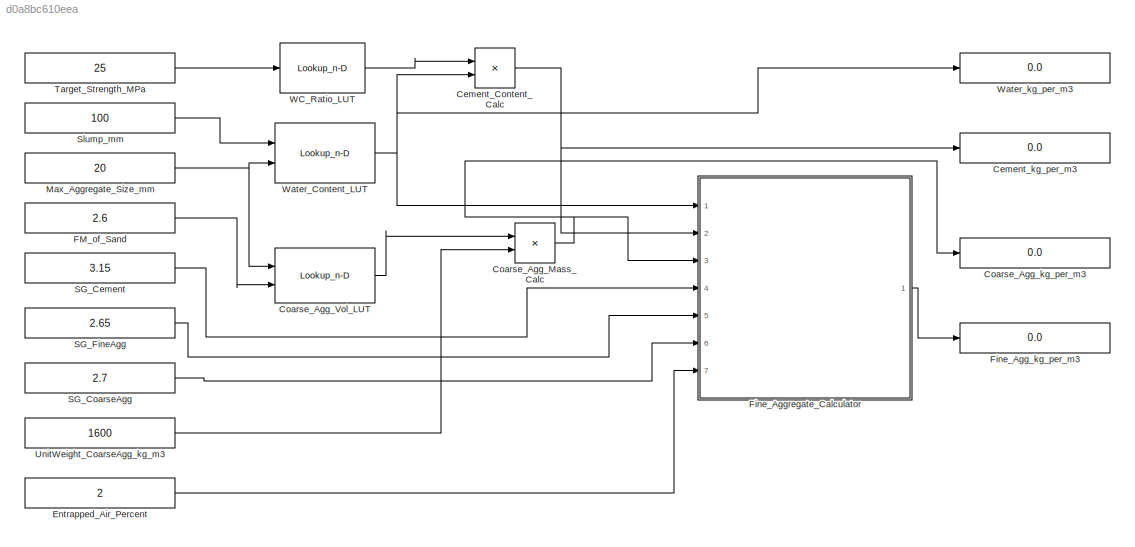
MODEL slx_d0a8bc610eea
KIND model
CONFIG AbsTol = auto
CONFIG EnableMultiTasking = off
CONFIG FixedStep = auto
CONFIG MaxStep = auto
CONFIG MinStep = auto
CONFIG RelTol = 1e-3
CONFIG SampleTimeConstraint = Unconstrained
CONFIG Solver = FixedStepDiscrete
CONFIG SolverName = FixedStepDiscrete
CONFIG StartTime = 0.0
CONFIG StopTime = 0
BLOCK [Product] Cement_Content_Calc
  Inputs = /*
  Ports = [2, 1]
BLOCK [Display] Cement_kg_per_m3
  Decimation = 1
  Ports = [1]
BLOCK [Product] Coarse_Agg_Mass_Calc
  Ports = [2, 1]
BLOCK [Lookup_n-D] Coarse_Agg_Vol_LUT
  BreakpointsForDimension1 = [10 20 40]
  BreakpointsForDimension2 = [2.4 2.6 2.8]
  Description = ACI 211.1 Table 6.3.6: Volume of coarse aggregate per unit of volume of concrete.
  InternalRulePriority = Speed
  Ports = [2, 1]
  RndMeth = Simplest
  Table = [0.50 0.48 0.46; 0.66 0.64 0.62; 0.75 0.73 0.71]
BLOCK [Display] Coarse_Agg_kg_per_m3
  Decimation = 1
  Ports = [1]
BLOCK [Constant] Entrapped_Air_Percent
  Value = 2
BLOCK [Constant] FM_of_Sand
  Value = 2.6
BLOCK [Display] Fine_Agg_kg_per_m3
  Decimation = 1
  Ports = [1]
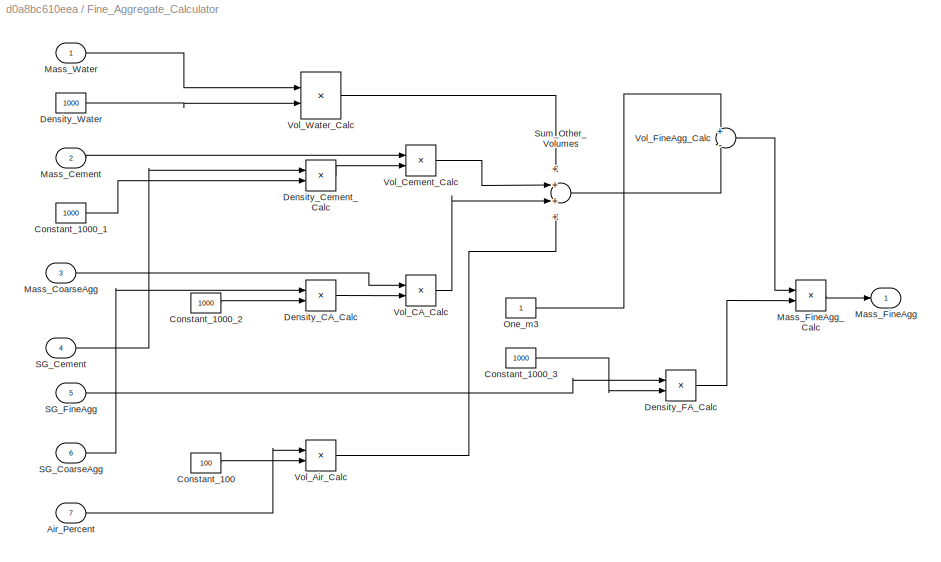
BLOCK [SubSystem] Fine_Aggregate_Calculator
  Ports = [7, 1]
  RequestExecContextInheritance = off
BLOCK [Inport] Fine_Aggregate_Calculator/Air_Percent
  Port = 7
BLOCK [Constant] Fine_Aggregate_Calculator/Constant_100
  Value = 100
BLOCK [Constant] Fine_Aggregate_Calculator/Constant_1000_1
  Value = 1000
BLOCK [Constant] Fine_Aggregate_Calculator/Constant_1000_2
  Value = 1000
BLOCK [Constant] Fine_Aggregate_Calculator/Constant_1000_3
  Value = 1000
BLOCK [Product] Fine_Aggregate_Calculator/Density_CA_Calc
  Ports = [2, 1]
BLOCK [Product] Fine_Aggregate_Calculator/Density_Cement_Calc
  Ports = [2, 1]
BLOCK [Product] Fine_Aggregate_Calculator/Density_FA_Calc
  Ports = [2, 1]
BLOCK [Constant] Fine_Aggregate_Calculator/Density_Water
  Value = 1000
BLOCK [Inport] Fine_Aggregate_Calculator/Mass_Cement
  Port = 2
BLOCK [Inport] Fine_Aggregate_Calculator/Mass_CoarseAgg
  Port = 3
BLOCK [Outport] Fine_Aggregate_Calculator/Mass_FineAgg
BLOCK [Product] Fine_Aggregate_Calculator/Mass_FineAgg_Calc
  Inputs = **
  Ports = [2, 1]
BLOCK [Inport] Fine_Aggregate_Calculator/Mass_Water
BLOCK [Constant] Fine_Aggregate_Calculator/One_m3
BLOCK [Inport] Fine_Aggregate_Calculator/SG_Cement
  Port = 4
BLOCK [Inport] Fine_Aggregate_Calculator/SG_CoarseAgg
  Port = 6
BLOCK [Inport] Fine_Aggregate_Calculator/SG_FineAgg
  Port = 5
BLOCK [Sum] Fine_Aggregate_Calculator/Sum_Other_Volumes
  Inputs = ++++
  Ports = [4, 1]
BLOCK [Product] Fine_Aggregate_Calculator/Vol_Air_Calc
  Inputs = */
  Ports = [2, 1]
BLOCK [Product] Fine_Aggregate_Calculator/Vol_CA_Calc
  Inputs = */
  Ports = [2, 1]
BLOCK [Product] Fine_Aggregate_Calculator/Vol_Cement_Calc
  Inputs = */
  Ports = [2, 1]
BLOCK [Sum] Fine_Aggregate_Calculator/Vol_FineAgg_Calc
  Inputs = +-
  Ports = [2, 1]
BLOCK [Product] Fine_Aggregate_Calculator/Vol_Water_Calc
  Inputs = */
  Ports = [2, 1]
BLOCK [Constant] Max_Aggregate_Size_mm
  Value = 20
BLOCK [Constant] SG_Cement
  Value = 3.15
BLOCK [Constant] SG_CoarseAgg
  Value = 2.7
BLOCK [Constant] SG_FineAgg
  Value = 2.65
BLOCK [Constant] Slump_mm
  Value = 100
BLOCK [Constant] Target_Strength_MPa
  Value = 25
BLOCK [Constant] UnitWeight_CoarseAgg_kg_m3
  Value = 1600
BLOCK [Lookup_n-D] WC_Ratio_LUT
  BreakpointsForDimension1 = [25 35 45]
  Description = ACI 211.1 Table 6.3.4(a): Relationships between water-cement ratio and compressive strength of concrete.
  InternalRulePriority = Speed
  NumberOfTableDimensions = 1
  Ports = [1, 1]
  RndMeth = Simplest
  Table = [0.65 0.52 0.42]
BLOCK [Lookup_n-D] Water_Content_LUT
  BreakpointsForDimension1 = [37.5 87.5]
  BreakpointsForDimension2 = [10 20 40]
  Description = ACI 211.1 Table 6.3.3: Approximate mixing water for different slumps and nominal maximum sizes of aggregates.
  InternalRulePriority = Speed
  Ports = [2, 1]
  RndMeth = Simplest
  Table = [215 190 175; 225 205 185]
BLOCK [Display] Water_kg_per_m3
  Decimation = 1
  Ports = [1]
NET Cement_Content_Calc:1 -> Cement_kg_per_m3:1, Fine_Aggregate_Calculator:2
NET Coarse_Agg_Mass_Calc:1 -> Coarse_Agg_kg_per_m3:1, Fine_Aggregate_Calculator:3
LINE Coarse_Agg_Vol_LUT:1 -> Coarse_Agg_Mass_Calc:1
LINE Entrapped_Air_Percent:1 -> Fine_Aggregate_Calculator:7
LINE FM_of_Sand:1 -> Coarse_Agg_Vol_LUT:2
LINE Fine_Aggregate_Calculator/Air_Percent:1 -> Fine_Aggregate_Calculator/Vol_Air_Calc:1
LINE Fine_Aggregate_Calculator/Constant_1000_1:1 -> Fine_Aggregate_Calculator/Density_Cement_Calc:2
LINE Fine_Aggregate_Calculator/Constant_1000_2:1 -> Fine_Aggregate_Calculator/Density_CA_Calc:2
LINE Fine_Aggregate_Calculator/Constant_1000_3:1 -> Fine_Aggregate_Calculator/Density_FA_Calc:2
LINE Fine_Aggregate_Calculator/Constant_100:1 -> Fine_Aggregate_Calculator/Vol_Air_Calc:2
LINE Fine_Aggregate_Calculator/Density_CA_Calc:1 -> Fine_Aggregate_Calculator/Vol_CA_Calc:2
LINE Fine_Aggregate_Calculator/Density_Cement_Calc:1 -> Fine_Aggregate_Calculator/Vol_Cement_Calc:2
LINE Fine_Aggregate_Calculator/Density_FA_Calc:1 -> Fine_Aggregate_Calculator/Mass_FineAgg_Calc:2
LINE Fine_Aggregate_Calculator/Density_Water:1 -> Fine_Aggregate_Calculator/Vol_Water_Calc:2
LINE Fine_Aggregate_Calculator/Mass_Cement:1 -> Fine_Aggregate_Calculator/Vol_Cement_Calc:1
LINE Fine_Aggregate_Calculator/Mass_CoarseAgg:1 -> Fine_Aggregate_Calculator/Vol_CA_Calc:1
LINE Fine_Aggregate_Calculator/Mass_FineAgg_Calc:1 -> Fine_Aggregate_Calculator/Mass_FineAgg:1
LINE Fine_Aggregate_Calculator/Mass_Water:1 -> Fine_Aggregate_Calculator/Vol_Water_Calc:1
LINE Fine_Aggregate_Calculator/One_m3:1 -> Fine_Aggregate_Calculator/Vol_FineAgg_Calc:1
LINE Fine_Aggregate_Calculator/SG_Cement:1 -> Fine_Aggregate_Calculator/Density_Cement_Calc:1
LINE Fine_Aggregate_Calculator/SG_CoarseAgg:1 -> Fine_Aggregate_Calculator/Density_CA_Calc:1
LINE Fine_Aggregate_Calculator/SG_FineAgg:1 -> Fine_Aggregate_Calculator/Density_FA_Calc:1
LINE Fine_Aggregate_Calculator/Sum_Other_Volumes:1 -> Fine_Aggregate_Calculator/Vol_FineAgg_Calc:2
LINE Fine_Aggregate_Calculator/Vol_Air_Calc:1 -> Fine_Aggregate_Calculator/Sum_Other_Volumes:4
LINE Fine_Aggregate_Calculator/Vol_CA_Calc:1 -> Fine_Aggregate_Calculator/Sum_Other_Volumes:3
LINE Fine_Aggregate_Calculator/Vol_Cement_Calc:1 -> Fine_Aggregate_Calculator/Sum_Other_Volumes:2
LINE Fine_Aggregate_Calculator/Vol_FineAgg_Calc:1 -> Fine_Aggregate_Calculator/Mass_FineAgg_Calc:1
LINE Fine_Aggregate_Calculator/Vol_Water_Calc:1 -> Fine_Aggregate_Calculator/Sum_Other_Volumes:1
LINE Fine_Aggregate_Calculator:1 -> Fine_Agg_kg_per_m3:1
NET Max_Aggregate_Size_mm:1 -> Coarse_Agg_Vol_LUT:1, Water_Content_LUT:2
LINE SG_Cement:1 -> Fine_Aggregate_Calculator:4
LINE SG_CoarseAgg:1 -> Fine_Aggregate_Calculator:6
LINE SG_FineAgg:1 -> Fine_Aggregate_Calculator:5
LINE Slump_mm:1 -> Water_Content_LUT:1
LINE Target_Strength_MPa:1 -> WC_Ratio_LUT:1
LINE UnitWeight_CoarseAgg_kg_m3:1 -> Coarse_Agg_Mass_Calc:2
LINE WC_Ratio_LUT:1 -> Cement_Content_Calc:1
NET Water_Content_LUT:1 -> Cement_Content_Calc:2, Fine_Aggregate_Calculator:1, Water_kg_per_m3:1
note: NET lines group one-source signal fan-out (src -> all destinations, sorted); 1:1 wires keep LINE
